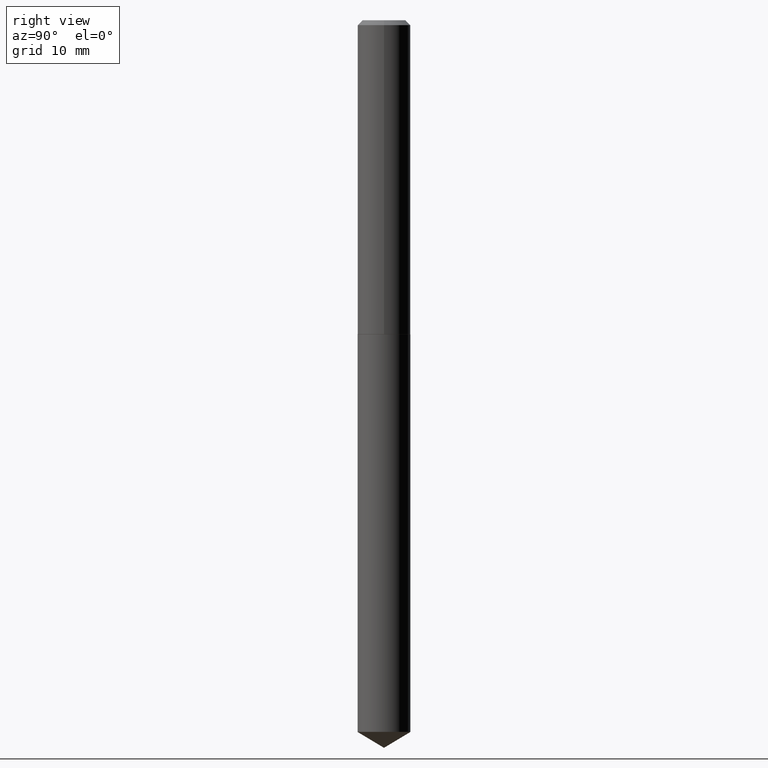
[diagram: clean part render]
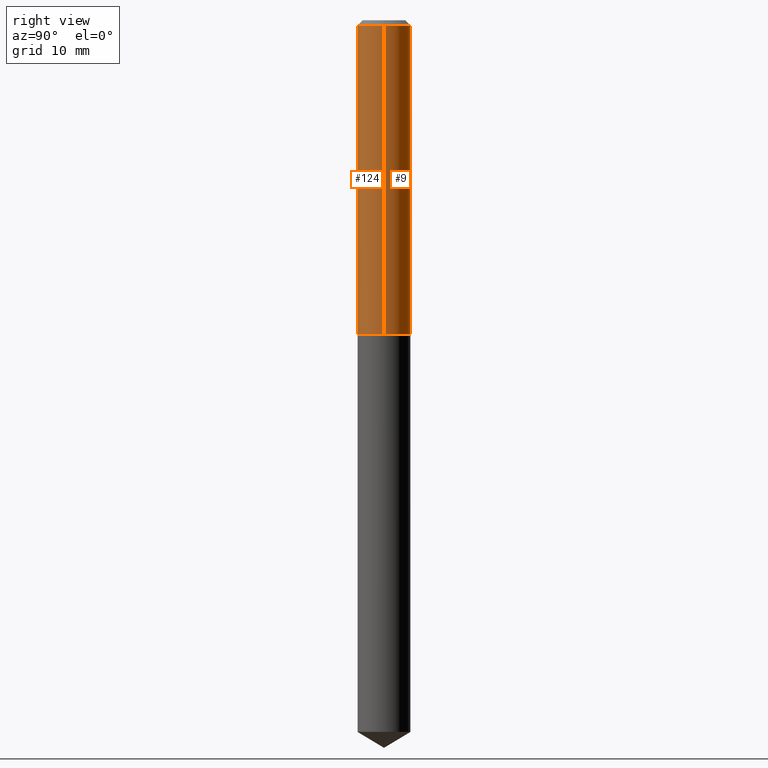
[diagram: same view with one multi-face feature highlighted, each face labeled with its STEP entity id]
A machine part, right view. The highlighted faces form ONE feature: a constant-radius fillet chain: 2 tangent blend faces with common blend radius 4.2494 mm. The faces share edges in the B-rep.
Their STEP definitions:
[1] entity #124 (Cylinder):
#17 = EDGE_CURVE ( 'NONE', #47, #93, #212, .T. ) ;
#19 = DIRECTION ( 'NONE',  ( -2.445468806185136597E-29, 3.491481338843145583E-15, 1.000000000000000000 ) ) ;
#26 = CIRCLE ( 'NONE', #351, 0.1673000000000000043 ) ;
#35 = ORIENTED_EDGE ( 'NONE', *, *, #318, .T. ) ;
#47 = VERTEX_POINT ( 'NONE', #293 ) ;
#49 = AXIS2_PLACEMENT_3D ( 'NONE', #53, #255, #355 ) ;
#51 = CARTESIAN_POINT ( 'NONE',  ( 0.1673000000000001430, -1.168249655976913378E-15, 8.157843745906607218E-30 ) ) ;
#53 = CARTESIAN_POINT ( 'NONE',  ( 0.000000000000000000, 0.000000000000000000, 0.000000000000000000 ) ) ;
#79 = CARTESIAN_POINT ( 'NONE',  ( 7.642090019328603538E-31, -1.091087918388490390E-16, -0.03125000000000021511 ) ) ;
#82 = FACE_OUTER_BOUND ( 'NONE', #368, .T. ) ;
#90 = EDGE_CURVE ( 'NONE', #123, #332, #112, .T. ) ;
#93 = VERTEX_POINT ( 'NONE', #140 ) ;
#104 = VECTOR ( 'NONE', #182, 39.37007874015748143 ) ;
#112 = LINE ( 'NONE', #51, #208 ) ;
#123 = VERTEX_POINT ( 'NONE', #231 ) ;
#124 = ADVANCED_FACE ( 'NONE', ( #82 ), #287, .T. ) ;
#132 = EDGE_CURVE ( 'NONE', #93, #332, #26, .T. ) ;
#140 = CARTESIAN_POINT ( 'NONE',  ( -0.1673000000000000043, -2.335650553535093086E-15, -0.03125000000000021511 ) ) ;
#164 = DIRECTION ( 'NONE',  ( -2.445468806185136877E-29, 3.491481338843145188E-15, 1.000000000000000000 ) ) ;
#179 = ORIENTED_EDGE ( 'NONE', *, *, #90, .T. ) ;
#182 = DIRECTION ( 'NONE',  ( -2.445468806185136877E-29, 3.491481338843145188E-15, 1.000000000000000000 ) ) ;
#208 = VECTOR ( 'NONE', #164, 39.37007874015748143 ) ;
#212 = LINE ( 'NONE', #240, #104 ) ;
#231 = CARTESIAN_POINT ( 'NONE',  ( 0.1673000000000002818, -8.107917965061549875E-15, -1.987600000000000033 ) ) ;
#237 = ORIENTED_EDGE ( 'NONE', *, *, #132, .F. ) ;
#240 = CARTESIAN_POINT ( 'NONE',  ( -0.1673000000000001430, 1.188737996926648627E-15, -8.229378405996464557E-30 ) ) ;
#249 = AXIS2_PLACEMENT_3D ( 'NONE', #333, #363, #299 ) ;
#255 = DIRECTION ( 'NONE',  ( -2.445468806185136597E-29, 3.491481338843145583E-15, 1.000000000000000000 ) ) ;
#287 = CYLINDRICAL_SURFACE ( 'NONE', #49, 0.1673000000000001430 ) ;
#293 = CARTESIAN_POINT ( 'NONE',  ( -0.1673000000000002818, -5.750930312157987080E-15, -1.987600000000000033 ) ) ;
#299 = DIRECTION ( 'NONE',  ( 1.000000000000000000, -6.982962677686262766E-15, 0.000000000000000000 ) ) ;
#318 = EDGE_CURVE ( 'NONE', #47, #123, #336, .T. ) ;
#319 = DIRECTION ( 'NONE',  ( 1.000000000000000000, -6.982962677686266711E-15, 0.000000000000000000 ) ) ;
#332 = VERTEX_POINT ( 'NONE', #390 ) ;
#333 = CARTESIAN_POINT ( 'NONE',  ( 4.860613799173577546E-29, -6.939668309084636299E-15, -1.987600000000000033 ) ) ;
#336 = CIRCLE ( 'NONE', #249, 0.1673000000000002818 ) ;
#351 = AXIS2_PLACEMENT_3D ( 'NONE', #79, #19, #319 ) ;
#355 = DIRECTION ( 'NONE',  ( 1.000000000000000000, -6.982962677686266711E-15, 4.876176775795935793E-29 ) ) ;
#359 = ORIENTED_EDGE ( 'NONE', *, *, #17, .F. ) ;
#363 = DIRECTION ( 'NONE',  ( -2.445468806185136597E-29, 3.491481338843145583E-15, 1.000000000000000000 ) ) ;
#368 = EDGE_LOOP ( 'NONE', ( #359, #35, #179, #237 ) ) ;
#390 = CARTESIAN_POINT ( 'NONE',  ( 0.1673000000000000043, -1.277358447815761493E-15, -0.03125000000000021511 ) ) ;
[2] entity #9 (Cylinder):
#6 = DIRECTION ( 'NONE',  ( -2.445468806185136597E-29, 3.491481338843145583E-15, 1.000000000000000000 ) ) ;
#8 = AXIS2_PLACEMENT_3D ( 'NONE', #32, #6, #129 ) ;
#9 = ADVANCED_FACE ( 'NONE', ( #338 ), #306, .T. ) ;
#17 = EDGE_CURVE ( 'NONE', #47, #93, #212, .T. ) ;
#32 = CARTESIAN_POINT ( 'NONE',  ( 0.000000000000000000, 0.000000000000000000, 0.000000000000000000 ) ) ;
#47 = VERTEX_POINT ( 'NONE', #293 ) ;
#51 = CARTESIAN_POINT ( 'NONE',  ( 0.1673000000000001430, -1.168249655976913378E-15, 8.157843745906607218E-30 ) ) ;
#87 = EDGE_CURVE ( 'NONE', #123, #47, #149, .T. ) ;
#90 = EDGE_CURVE ( 'NONE', #123, #332, #112, .T. ) ;
#93 = VERTEX_POINT ( 'NONE', #140 ) ;
#101 = AXIS2_PLACEMENT_3D ( 'NONE', #258, #322, #165 ) ;
#104 = VECTOR ( 'NONE', #182, 39.37007874015748143 ) ;
#112 = LINE ( 'NONE', #51, #208 ) ;
#117 = DIRECTION ( 'NONE',  ( 1.000000000000000000, -6.982962677686262766E-15, 0.000000000000000000 ) ) ;
#122 = ORIENTED_EDGE ( 'NONE', *, *, #90, .F. ) ;
#123 = VERTEX_POINT ( 'NONE', #231 ) ;
#125 = ORIENTED_EDGE ( 'NONE', *, *, #17, .T. ) ;
#129 = DIRECTION ( 'NONE',  ( 1.000000000000000000, -6.982962677686266711E-15, 4.876176775795935793E-29 ) ) ;
#140 = CARTESIAN_POINT ( 'NONE',  ( -0.1673000000000000043, -2.335650553535093086E-15, -0.03125000000000021511 ) ) ;
#149 = CIRCLE ( 'NONE', #329, 0.1673000000000002818 ) ;
#161 = EDGE_LOOP ( 'NONE', ( #162, #125, #309, #122 ) ) ;
#162 = ORIENTED_EDGE ( 'NONE', *, *, #87, .T. ) ;
#164 = DIRECTION ( 'NONE',  ( -2.445468806185136877E-29, 3.491481338843145188E-15, 1.000000000000000000 ) ) ;
#165 = DIRECTION ( 'NONE',  ( 1.000000000000000000, -6.982962677686266711E-15, 0.000000000000000000 ) ) ;
#177 = EDGE_CURVE ( 'NONE', #332, #93, #303, .T. ) ;
#182 = DIRECTION ( 'NONE',  ( -2.445468806185136877E-29, 3.491481338843145188E-15, 1.000000000000000000 ) ) ;
#208 = VECTOR ( 'NONE', #164, 39.37007874015748143 ) ;
#212 = LINE ( 'NONE', #240, #104 ) ;
#231 = CARTESIAN_POINT ( 'NONE',  ( 0.1673000000000002818, -8.107917965061549875E-15, -1.987600000000000033 ) ) ;
#240 = CARTESIAN_POINT ( 'NONE',  ( -0.1673000000000001430, 1.188737996926648627E-15, -8.229378405996464557E-30 ) ) ;
#258 = CARTESIAN_POINT ( 'NONE',  ( 7.642090019328603538E-31, -1.091087918388490390E-16, -0.03125000000000021511 ) ) ;
#264 = CARTESIAN_POINT ( 'NONE',  ( 4.860613799173577546E-29, -6.939668309084636299E-15, -1.987600000000000033 ) ) ;
#293 = CARTESIAN_POINT ( 'NONE',  ( -0.1673000000000002818, -5.750930312157987080E-15, -1.987600000000000033 ) ) ;
#303 = CIRCLE ( 'NONE', #101, 0.1673000000000000043 ) ;
#306 = CYLINDRICAL_SURFACE ( 'NONE', #8, 0.1673000000000001430 ) ;
#309 = ORIENTED_EDGE ( 'NONE', *, *, #177, .F. ) ;
#322 = DIRECTION ( 'NONE',  ( -2.445468806185136597E-29, 3.491481338843145583E-15, 1.000000000000000000 ) ) ;
#329 = AXIS2_PLACEMENT_3D ( 'NONE', #264, #389, #117 ) ;
#332 = VERTEX_POINT ( 'NONE', #390 ) ;
#338 = FACE_OUTER_BOUND ( 'NONE', #161, .T. ) ;
#389 = DIRECTION ( 'NONE',  ( -2.445468806185136597E-29, 3.491481338843145583E-15, 1.000000000000000000 ) ) ;
#390 = CARTESIAN_POINT ( 'NONE',  ( 0.1673000000000000043, -1.277358447815761493E-15, -0.03125000000000021511 ) ) ;